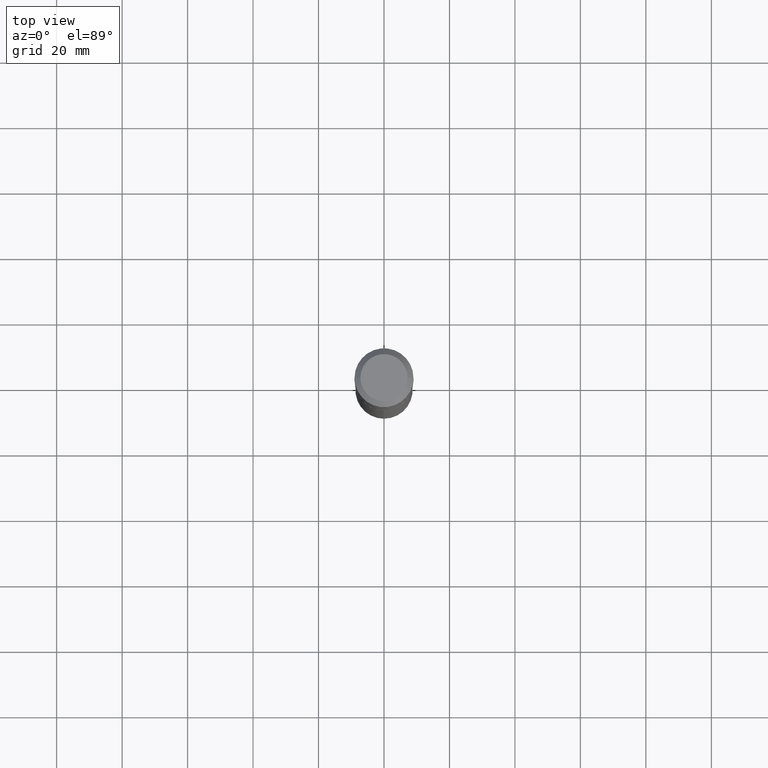
[diagram: clean part render]
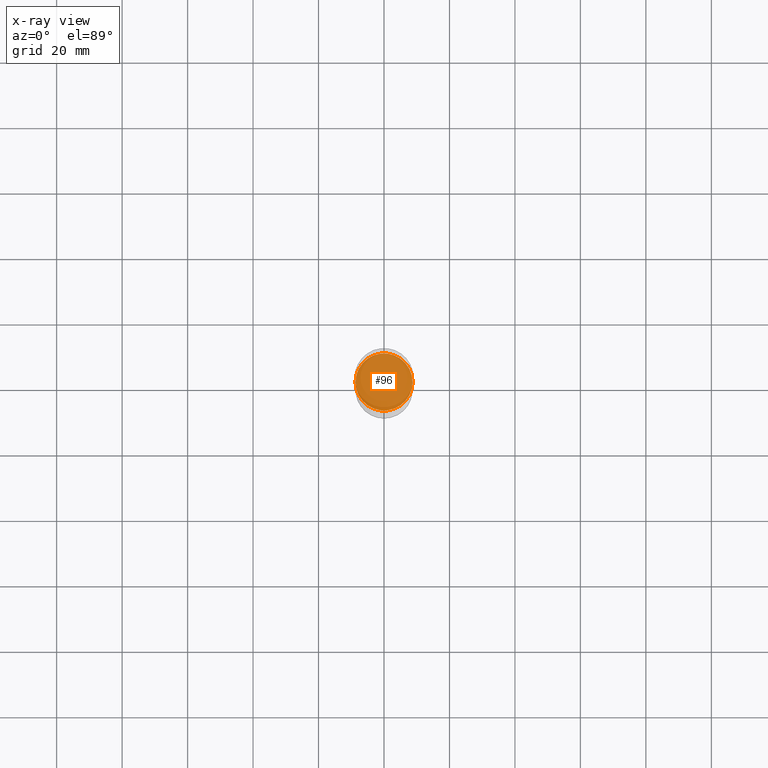
[diagram: x-ray — body ghosted, one internal face saturated and labeled with its STEP entity id]
A machine part, top view, then the same camera in x-ray: the body is ghosted and one INTERNAL B-rep face — a face not visible from any outside direction — is saturated and labeled: STEP entity #96.
In plain terms, the highlighted planar face has unit normal (-0, 0, 1).
Its self-contained STEP definition (entity closure, byte-faithful):
#58 = DIRECTION ( 'NONE',  ( -2.445468806185136597E-29, 3.491481338843145583E-15, 1.000000000000000000 ) ) ;
#68 = AXIS2_PLACEMENT_3D ( 'NONE', #124, #86, #231 ) ;
#74 = DIRECTION ( 'NONE',  ( -2.438088387897960049E-29, 3.491481338843145188E-15, 1.000000000000000000 ) ) ;
#77 = AXIS2_PLACEMENT_3D ( 'NONE', #164, #58, #253 ) ;
#86 = DIRECTION ( 'NONE',  ( -2.445468806185136597E-29, 3.491481338843145583E-15, 1.000000000000000000 ) ) ;
#96 = ADVANCED_FACE ( 'NONE', ( #448 ), #328, .F. ) ;
#109 = CARTESIAN_POINT ( 'NONE',  ( 0.3432499999999999996, -1.311854283443534584E-14, -3.070800000000000640 ) ) ;
#124 = CARTESIAN_POINT ( 'NONE',  ( 7.509545610033318642E-29, -1.072164089531953388E-14, -3.070800000000000640 ) ) ;
#139 = EDGE_LOOP ( 'NONE', ( #276, #435 ) ) ;
#164 = CARTESIAN_POINT ( 'NONE',  ( 7.509545610033318642E-29, -1.072164089531953388E-14, -3.070800000000000640 ) ) ;
#166 = VERTEX_POINT ( 'NONE', #109 ) ;
#183 = DIRECTION ( 'NONE',  ( 1.000000000000000000, -6.982962677686265922E-15, 4.876176775795935793E-29 ) ) ;
#231 = DIRECTION ( 'NONE',  ( 1.000000000000000000, -6.982962677686269077E-15, 0.000000000000000000 ) ) ;
#238 = CIRCLE ( 'NONE', #68, 0.3432499999999999996 ) ;
#244 = VERTEX_POINT ( 'NONE', #387 ) ;
#253 = DIRECTION ( 'NONE',  ( 1.000000000000000000, -6.982962677686269077E-15, 0.000000000000000000 ) ) ;
#259 = CARTESIAN_POINT ( 'NONE',  ( 7.509545610033318642E-29, -1.072164089531953388E-14, -3.070800000000000640 ) ) ;
#270 = AXIS2_PLACEMENT_3D ( 'NONE', #259, #74, #183 ) ;
#276 = ORIENTED_EDGE ( 'NONE', *, *, #319, .F. ) ;
#319 = EDGE_CURVE ( 'NONE', #166, #244, #238, .T. ) ;
#323 = EDGE_CURVE ( 'NONE', #244, #166, #347, .T. ) ;
#328 = PLANE ( 'NONE',  #270 ) ;
#347 = CIRCLE ( 'NONE', #77, 0.3432499999999999996 ) ;
#387 = CARTESIAN_POINT ( 'NONE',  ( -0.3432499999999999996, -8.280053727648877611E-15, -3.070800000000000640 ) ) ;
#435 = ORIENTED_EDGE ( 'NONE', *, *, #323, .F. ) ;
#448 = FACE_OUTER_BOUND ( 'NONE', #139, .T. ) ;